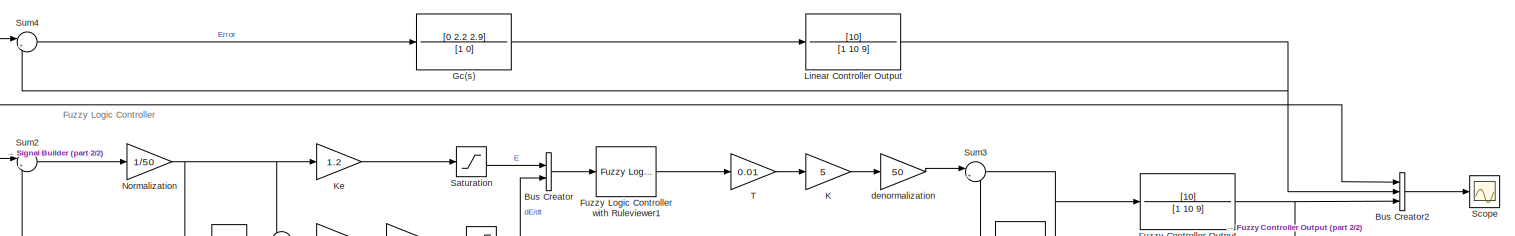
[diagram: root canvas - part 1/2, full width, middle band]
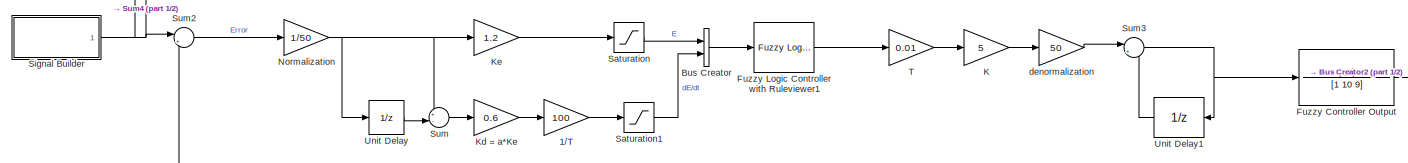
[diagram: root canvas - part 2/2, full width, middle band]
MODEL slx_77e78f0a922e
KIND model
CONFIG AbsTol = auto
CONFIG EnableMultiTasking = off
CONFIG FixedStep = auto
CONFIG MaxStep = auto
CONFIG MinStep = auto
CONFIG RelTol = 1e-3
CONFIG SampleTimeConstraint = Unconstrained
CONFIG Solver = VariableStepAuto
CONFIG SolverName = VariableStepAuto
CONFIG StartTime = 0.0
CONFIG StopTime = 10.0
BLOCK [Gain] 1//T
  Gain = 100
BLOCK [BusCreator] Bus Creator
  DisplayOption = bar
  InheritFromInputs = on
  Inputs = 2
  Ports = [2, 1]
BLOCK [BusCreator] Bus Creator2
  DisplayOption = bar
  InheritFromInputs = on
  Inputs = 3
  Ports = [3, 1]
BLOCK [TransferFcn] Fuzzy Controller Output
  Denominator = [1 10 9]
  Numerator = [10]
BLOCK [Reference] Fuzzy Logic Controller with Ruleviewer1  REF=fuzblock/Fuzzy Logic   (lib defined in mdl_858b3b3e7478)
Controller 
with Ruleviewer
  Ports = [1, 1]
  SourceBlock = fuzblock/Fuzzy Logic \nController \nwith Ruleviewer
  SourceProductBaseCode = FL
  SourceType = Fuzzy Inference System
BLOCK [TransferFcn] Gc(s)
  Denominator = [1 0]
  Numerator = [0 2.2 2.9]
BLOCK [Gain] K
  Gain = 5
BLOCK [Gain] Kd = a*Ke
  Gain = 0.6
BLOCK [Gain] Ke
  Gain = 1.2
BLOCK [TransferFcn] Linear Controller Output
  Denominator = [1 10 9]
  Numerator = [10]
BLOCK [Gain] Normalization
  Gain = 1/50
BLOCK [Saturate] Saturation
  LowerLimit = -1
  UpperLimit = 1
BLOCK [Saturate] Saturation1
  LowerLimit = -1
  UpperLimit = 1
BLOCK [Scope] Scope
  Floating = off
  NumInputPorts = 1
  Ports = [1]
  ScopeSpecificationString = Simulink.scopes.TimeScopeBlockCfg('CurrentConfiguration', extmgr.ConfigurationSet(extmgr.Configuration('Core','General UI',true),extmgr.Configuration('Core','Source UI',true),extmgr.Configuration('Sources','WiredSimulink',true),extmgr.Configuration('Visuals','Time Domain',true,'SerializedDisplays',{struct('MinYLimReal','0','MaxYLimReal','60','YLabelReal','','MinYLimMag','0.00000','MaxYLimMag','26....<+1425ch>
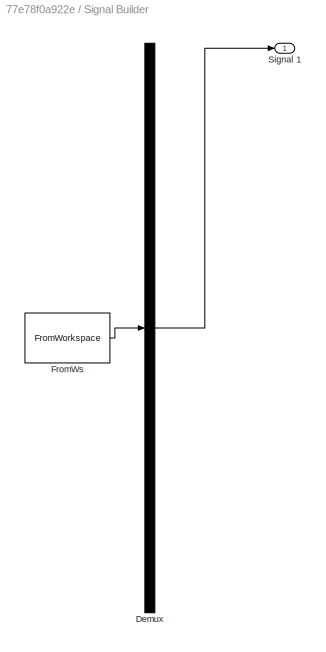
BLOCK [SubSystem] Signal Builder
  ClipboardFcn = sigbuilder_block('clipboard');
  CloseFcn = sigbuilder_block('close');
  ContinueFcn = sigbuilder_block('continue');
  CopyFcn = sigbuilder_block('copy');
  DeleteFcn = sigbuilder_block('delete');
  LoadFcn = sigbuilder_block('load',[437.6 199.2 550.4 400 ]);
  MaskHideContents = on
  ModelCloseFcn = sigbuilder_block('modelClose');
  NameChangeFcn = sigbuilder_block('namechange');
  OpenFcn = sigbuilder_block('open',[437.6 199.2 550.4 400 ]);
  PauseFcn = sigbuilder_block('pause');
  Ports = [0, 1]
  PreSaveFcn = sigbuilder_block('preSave');
  RequestExecContextInheritance = off
  StartFcn = sigbuilder_block('start');
  StopFcn = sigbuilder_block('stop');
  Tag = STV Subsys
BLOCK [Demux] Signal Builder/Demux
  DisplayOption = none
  Outputs = 1
  Ports = [1, 1]
  Tag = STV Demux
BLOCK [FromWorkspace] Signal Builder/FromWs
  Tag = STV FromWs
  VariableName = tuvar
BLOCK [Outport] Signal Builder/Signal 1
  Tag = STV Outport
BLOCK [Sum] Sum
  Inputs = +-|
  Ports = [2, 1]
BLOCK [Sum] Sum2
  Inputs = |+-
  Ports = [2, 1]
BLOCK [Sum] Sum3
  Inputs = |++
  Ports = [2, 1]
BLOCK [Sum] Sum4
  Inputs = |+-
  Ports = [2, 1]
BLOCK [Gain] T
  Gain = 0.01
BLOCK [UnitDelay] Unit Delay
  HasFrameUpgradeWarning = on
  SampleTime = -1
BLOCK [UnitDelay] Unit Delay1
  HasFrameUpgradeWarning = on
  SampleTime = -1
BLOCK [Gain] denormalization
  Gain = 50
ANNOTATION (root): Fuzzy Logic Controller
LINE 1//T:1 -> Saturation1:1
LINE Bus Creator2:1 -> Scope:1
LINE Bus Creator:1 -> Fuzzy Logic Controller with Ruleviewer1:1
NET Fuzzy Controller Output:1 -> Bus Creator2:3, Sum2:2
LINE Fuzzy Logic Controller with Ruleviewer1:1 -> T:1
LINE Gc(s):1 -> Linear Controller Output:1
LINE K:1 -> denormalization:1
LINE Kd = a*Ke:1 -> 1//T:1
LINE Ke:1 -> Saturation:1
NET Linear Controller Output:1 -> Bus Creator2:2, Sum4:2
NET Normalization:1 -> Ke:1, Sum:1, Unit Delay:1
LINE Saturation1:1 -> Bus Creator:2
LINE Saturation:1 -> Bus Creator:1
NET Signal Builder:1 -> Bus Creator2:1, Sum2:1, Sum4:1
LINE Sum2:1 -> Normalization:1
NET Sum3:1 -> Fuzzy Controller Output:1, Unit Delay1:1
LINE Sum4:1 -> Gc(s):1
LINE Sum:1 -> Kd = a*Ke:1
LINE T:1 -> K:1
LINE Unit Delay1:1 -> Sum3:2
LINE Unit Delay:1 -> Sum:2
LINE denormalization:1 -> Sum3:1
note: NET lines group one-source signal fan-out (src -> all destinations, sorted); 1:1 wires keep LINE
